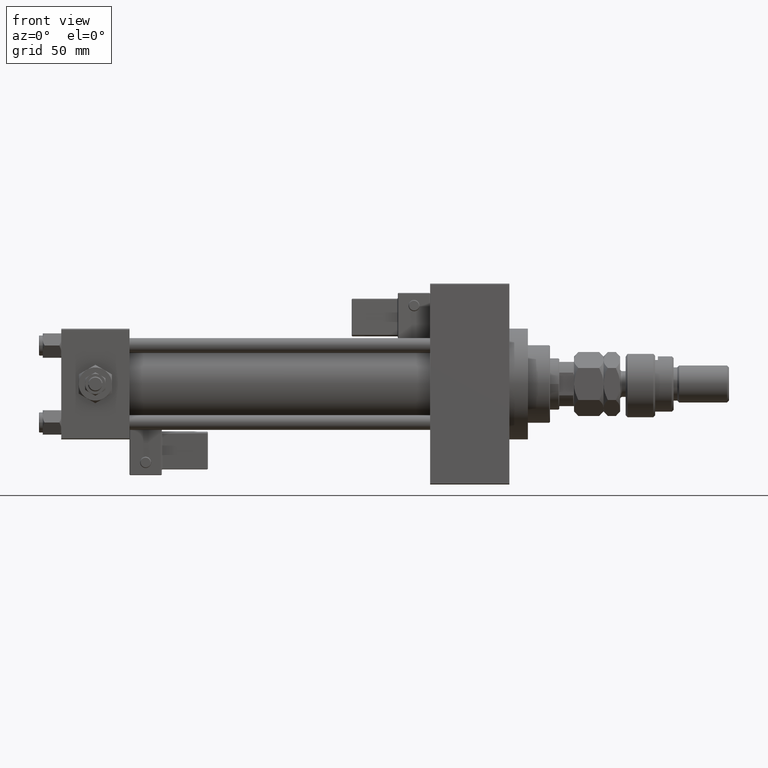
[diagram: clean part render]
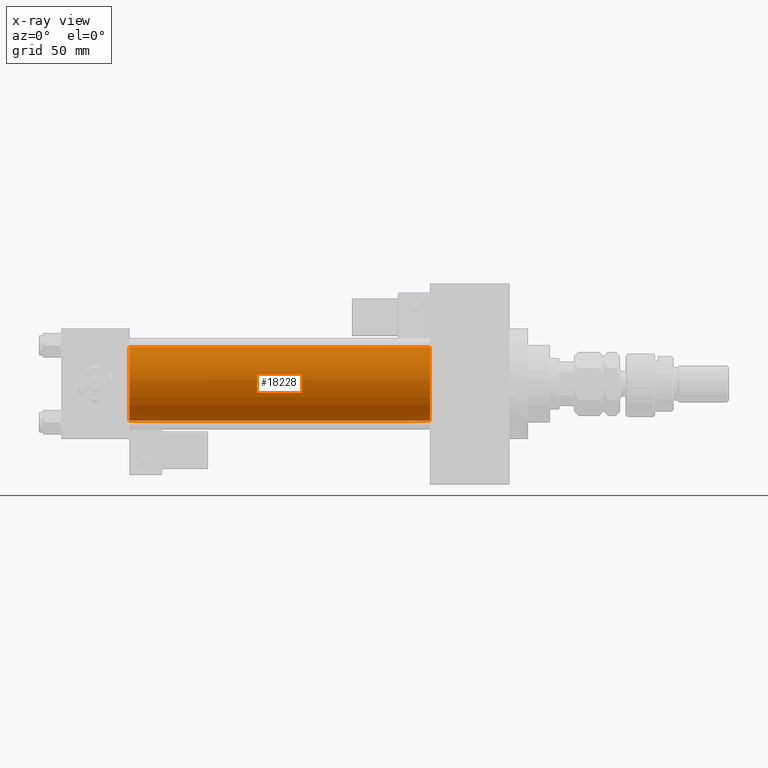
[diagram: x-ray — body ghosted, one internal face saturated and labeled with its STEP entity id]
A machine part, front view, then the same camera in x-ray: the body is ghosted and one INTERNAL B-rep face — a face not visible from any outside direction — is saturated and labeled: STEP entity #18228.
In plain terms, the highlighted cylindrical surface (partial cylindrical patch) has radius 20 mm, axis along (-1, -0, -0).
Its self-contained STEP definition (entity closure, byte-faithful):
#306 = FACE_OUTER_BOUND ( 'NONE', #9771, .T. ) ;
#1356 = VERTEX_POINT ( 'NONE', #10251 ) ;
#5219 = CARTESIAN_POINT ( 'NONE',  ( 200.0000000000000000, -1.527916156705042519E-16, -20.00000000000000000 ) ) ;
#5303 = ORIENTED_EDGE ( 'NONE', *, *, #21609, .F. ) ;
#6961 = CIRCLE ( 'NONE', #39240, 20.00000000000000000 ) ;
#8832 = CARTESIAN_POINT ( 'NONE',  ( 37.00000000000000000, -2.602085213965210642E-15, 20.00000000000000000 ) ) ;
#9771 = EDGE_LOOP ( 'NONE', ( #44071, #45508, #29686, #5303 ) ) ;
#9792 = DIRECTION ( 'NONE',  ( 0.000000000000000000, 0.000000000000000000, -1.000000000000000000 ) ) ;
#9807 = EDGE_CURVE ( 'NONE', #19597, #20685, #6961, .T. ) ;
#10251 = CARTESIAN_POINT ( 'NONE',  ( 37.00000000000000000, -1.527916156705042519E-16, -20.00000000000000000 ) ) ;
#10906 = DIRECTION ( 'NONE',  ( -1.000000000000000000, -0.000000000000000000, -0.000000000000000000 ) ) ;
#15328 = AXIS2_PLACEMENT_3D ( 'NONE', #36952, #53613, #16176 ) ;
#16176 = DIRECTION ( 'NONE',  ( 0.000000000000000000, 0.000000000000000000, 1.000000000000000000 ) ) ;
#18228 = ADVANCED_FACE ( 'NONE', ( #306 ), #49250, .F. ) ;
#18527 = CARTESIAN_POINT ( 'NONE',  ( 37.00000000000000000, -2.602085213965210642E-15, 0.000000000000000000 ) ) ;
#19125 = CIRCLE ( 'NONE', #23633, 20.00000000000000000 ) ;
#19597 = VERTEX_POINT ( 'NONE', #35764 ) ;
#20685 = VERTEX_POINT ( 'NONE', #48815 ) ;
#21609 = EDGE_CURVE ( 'NONE', #19597, #45136, #48631, .T. ) ;
#23633 = AXIS2_PLACEMENT_3D ( 'NONE', #18527, #26467, #9792 ) ;
#24208 = CARTESIAN_POINT ( 'NONE',  ( 200.0000000000000000, -2.602085213965210642E-15, 0.000000000000000000 ) ) ;
#26008 = DIRECTION ( 'NONE',  ( -1.000000000000000000, -0.000000000000000000, -0.000000000000000000 ) ) ;
#26467 = DIRECTION ( 'NONE',  ( 1.000000000000000000, 0.000000000000000000, 0.000000000000000000 ) ) ;
#29196 = EDGE_CURVE ( 'NONE', #45136, #1356, #19125, .T. ) ;
#29686 = ORIENTED_EDGE ( 'NONE', *, *, #29196, .F. ) ;
#29863 = EDGE_CURVE ( 'NONE', #20685, #1356, #50320, .T. ) ;
#35764 = CARTESIAN_POINT ( 'NONE',  ( 200.0000000000000000, -2.602085213965210642E-15, 20.00000000000000000 ) ) ;
#36952 = CARTESIAN_POINT ( 'NONE',  ( 200.0000000000000000, -2.602085213965210642E-15, 0.000000000000000000 ) ) ;
#37775 = DIRECTION ( 'NONE',  ( 0.000000000000000000, 0.000000000000000000, -1.000000000000000000 ) ) ;
#39240 = AXIS2_PLACEMENT_3D ( 'NONE', #24208, #44701, #37775 ) ;
#44071 = ORIENTED_EDGE ( 'NONE', *, *, #9807, .T. ) ;
#44260 = VECTOR ( 'NONE', #10906, 1000.000000000000000 ) ;
#44701 = DIRECTION ( 'NONE',  ( 1.000000000000000000, 0.000000000000000000, 0.000000000000000000 ) ) ;
#45136 = VERTEX_POINT ( 'NONE', #8832 ) ;
#45508 = ORIENTED_EDGE ( 'NONE', *, *, #29863, .T. ) ;
#46253 = VECTOR ( 'NONE', #26008, 1000.000000000000000 ) ;
#48361 = CARTESIAN_POINT ( 'NONE',  ( 200.0000000000000000, -2.602085213965210642E-15, 20.00000000000000000 ) ) ;
#48631 = LINE ( 'NONE', #48361, #44260 ) ;
#48815 = CARTESIAN_POINT ( 'NONE',  ( 200.0000000000000000, -1.527916156705042519E-16, -20.00000000000000000 ) ) ;
#49250 = CYLINDRICAL_SURFACE ( 'NONE', #15328, 20.00000000000000000 ) ;
#50320 = LINE ( 'NONE', #5219, #46253 ) ;
#53613 = DIRECTION ( 'NONE',  ( -1.000000000000000000, -0.000000000000000000, -0.000000000000000000 ) ) ;